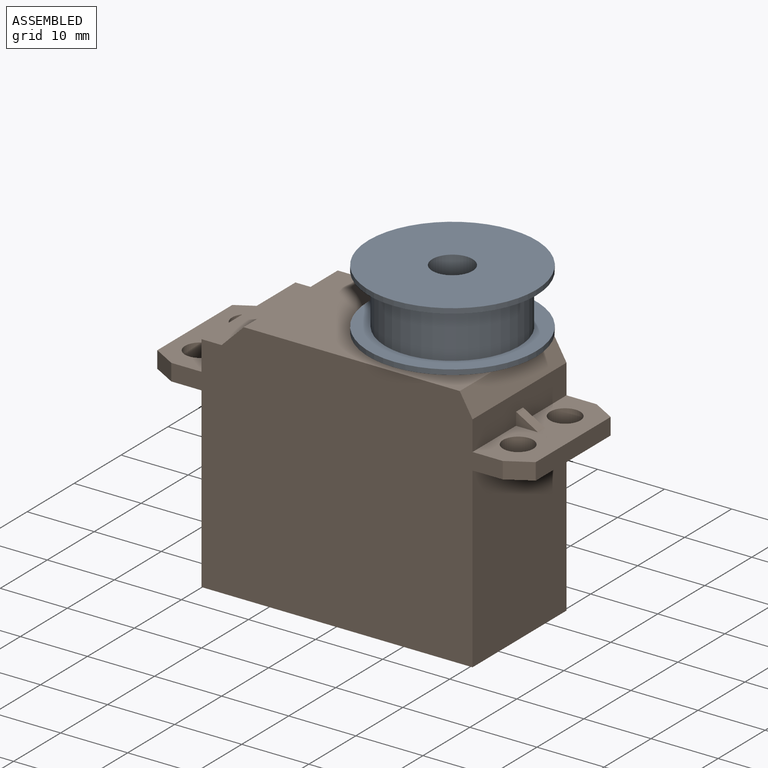
[diagram: assembled view]
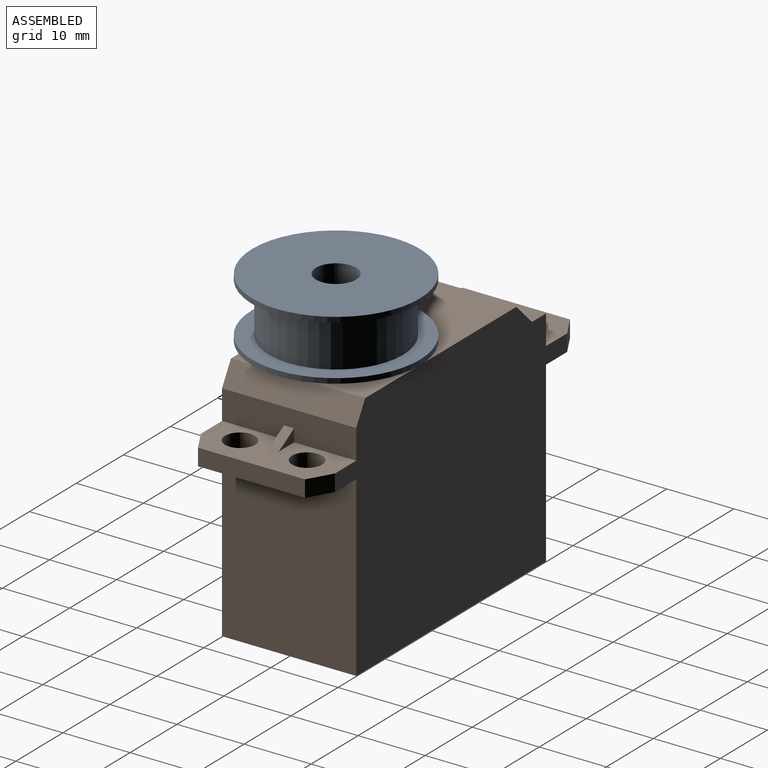
[diagram: assembled view, second angle]
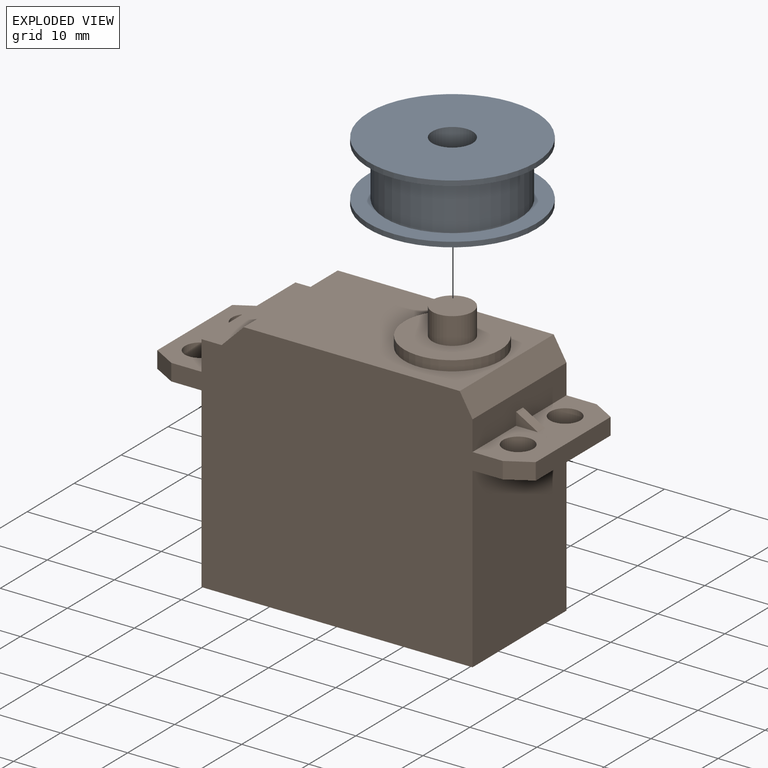
[diagram: exploded view]
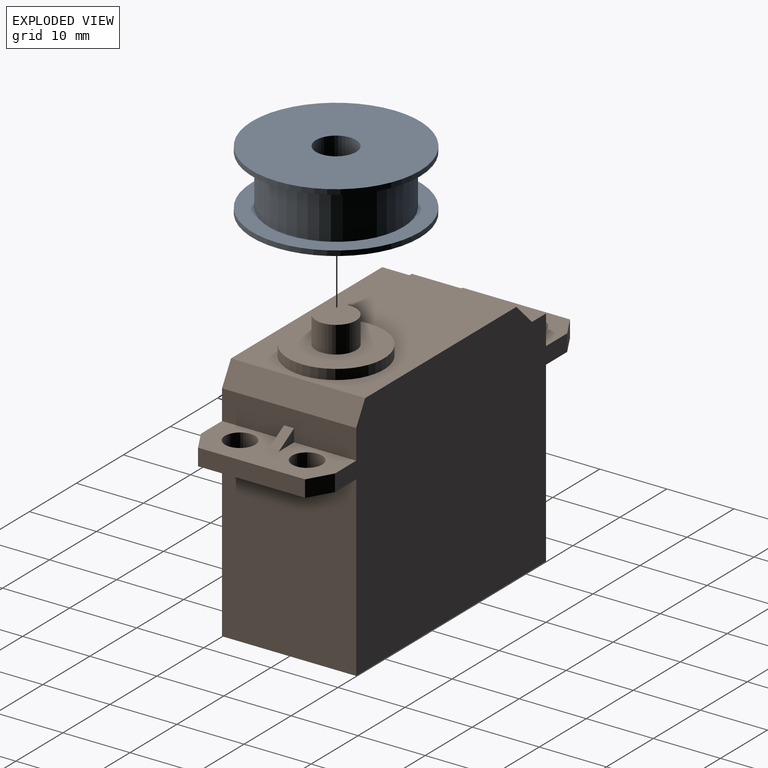
[diagram: exploded view, second angle]
ASSEMBLY  parts=2 mates=2
PART A: 8 faces, bbox 9x25x25 mm
  f0: plane 25x25mm, normal (-1,0,0), area 462.6mm2, adj f6,f7
  f1: plane 25x25mm, normal (1,0,0), area 462.6mm2, adj f2,f7
  f2: cylinder r=12.5mm len=25mm, axis (-1,0,0), area 58.9mm2, adj f1,f3
  f3: plane 25x25mm, normal (-1,0,0), area 176.7mm2, adj f2,f4
  f4: cylinder r=10mm len=20mm, axis (-1,0,0), area 471.2mm2, adj f3,f5
  f5: plane 25x25mm, normal (1,0,0), area 176.7mm2, adj f4,f6
  f6: cylinder r=12.5mm len=25mm, axis (-1,0,0), area 58.9mm2, adj f0,f5
  f7: cylinder r=3mm len=9mm, axis (-1,0,0), area 169.6mm2, adj f0,f1
PART B: 35 faces, bbox 56.4x20x42.2 mm
  f0: plane 20x8mm, normal (0,0,1), area 116.2mm2, adj f6,f7,f15,f16,f19,f20,f26,f28
  f1: plane 20x4.4mm, normal (-1,0,0), area 85.1mm2, adj f11,f12,f15,f16,f29,f30,f31
  f2: plane 26.5x20mm, normal (-1,0,0), area 530mm2, adj f3,f14,f15,f16
  f3: plane 40.4x20mm, normal (0,0,-1), area 808mm2, adj f2,f4,f15,f16
  f4: plane 26.5x20mm, normal (1,0,0), area 530mm2, adj f3,f5,f15,f16
  f5: plane 20x8mm, normal (0,0,-1), area 121.1mm2, adj f4,f6,f15,f16,f19,f20,f26,f28
  f6: plane 15.96x2.5mm, normal (1,0,0), area 39.9mm2, adj f0,f5,f19,f20
  f7: plane 20x4.4mm, normal (1,0,0), area 85.1mm2, adj f0,f8,f15,f16,f32,f33,f34
  f8: plane 20x3.3mm, normal (0.87,0,0.5), area 76.2mm2, adj f7,f9,f15,f16
  f9: plane 32.19x20mm, normal (0,0,1), area 483.3mm2, adj f8,f10,f15,f16,f21
  f10: plane 20x3.3mm, normal (-0.71,0,0.71), area 93.3mm2, adj f9,f11,f15,f16
  f11: plane 20x3mm, normal (0,0,1), area 60mm2, adj f1,f10,f15,f16
  f12: plane 20x8mm, normal (0,0,1), area 116.2mm2, adj f1,f13,f15,f16,f17,f18,f25,f27
  f13: plane 15.96x2.5mm, normal (-1,0,0), area 39.9mm2, adj f12,f14,f17,f18
  f14: plane 20x8mm, normal (0,0,-1), area 121.1mm2, adj f2,f13,f15,f16,f17,f18,f25,f27
  f15: plane 49.4x36.7mm, normal (0,-1,0), area 1486.7mm2, adj f0,f1,f2,f3,f4,f5,f7,f8
  f16: plane 49.4x36.7mm, normal (0,1,0), area 1486.7mm2, adj f0,f1,f2,f3,f4,f5,f7,f8
  f17: plane 3.5x2.5mm, normal (-0.5,0.87,0), area 10.1mm2, adj f12,f13,f14,f16
  f18: plane 3.5x2.5mm, normal (-0.5,-0.87,0), area 10.1mm2, adj f12,f13,f14,f15
  f19: plane 3.5x2.5mm, normal (0.5,0.87,0), area 10.1mm2, adj f0,f5,f6,f16
  f20: plane 3.5x2.5mm, normal (0.5,-0.87,0), area 10.1mm2, adj f0,f5,f6,f15
  f21: cylinder r=7.15mm len=14.3mm, axis (0,0,-1), area 67.4mm2, adj f9,f22
  f22: plane 14.3x14.3mm, normal (0,0,1), area 132.3mm2, adj f21,f23
  f23: cylinder r=3mm len=6mm, axis (0,0,-1), area 75.4mm2, adj f22,f24
  f24: plane 6x6mm, normal (0,0,1), area 28.3mm2, adj f23
  f25: cylinder r=2.25mm len=4.5mm, axis (0,0,1), area 35.3mm2, adj f12,f14
  f26: cylinder r=2.25mm len=4.5mm, axis (0,0,1), area 35.3mm2, adj f0,f5
  f27: cylinder r=2.25mm len=4.5mm, axis (0,0,1), area 35.3mm2, adj f12,f14
  f28: cylinder r=2.25mm len=4.5mm, axis (0,0,1), area 35.3mm2, adj f0,f5
  f29: plane 3.29x1.9mm, normal (0,-1,0), area 3.1mm2, adj f1,f12,f31
  f30: plane 3.29x1.9mm, normal (0,1,0), area 3.1mm2, adj f1,f12,f31
  f31: plane 3.29x1.9mm, normal (-0.5,0,0.87), area 5.7mm2, adj f1,f12,f29,f30
  f32: plane 3.29x1.9mm, normal (0,-1,0), area 3.1mm2, adj f0,f7,f34
  f33: plane 3.29x1.9mm, normal (0,1,0), area 3.1mm2, adj f0,f7,f34
  f34: plane 3.29x1.9mm, normal (0.5,0,0.87), area 5.7mm2, adj f0,f7,f32,f33
PLACE A rot(axis=(-0.58,0.58,0.58),120deg) t=(30.4,0,37.7)mm
PLACE B rot(axis=(1,0,0),0deg) t=(0,0,-5.5)mm
MATE cylindrical A.f2 <-> B.f23  axis (0,0,1) through (30.4,0,42.2)mm
MATE planar B.f23 <-> A.f2  axis (0,0,1) through (30.4,0,36.7)mm
